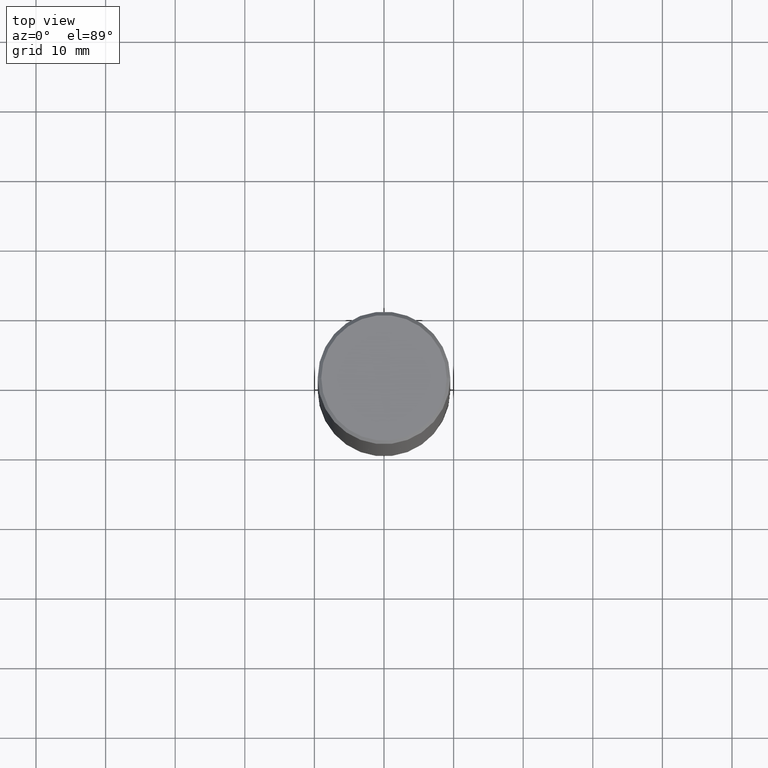
[diagram: clean part render]
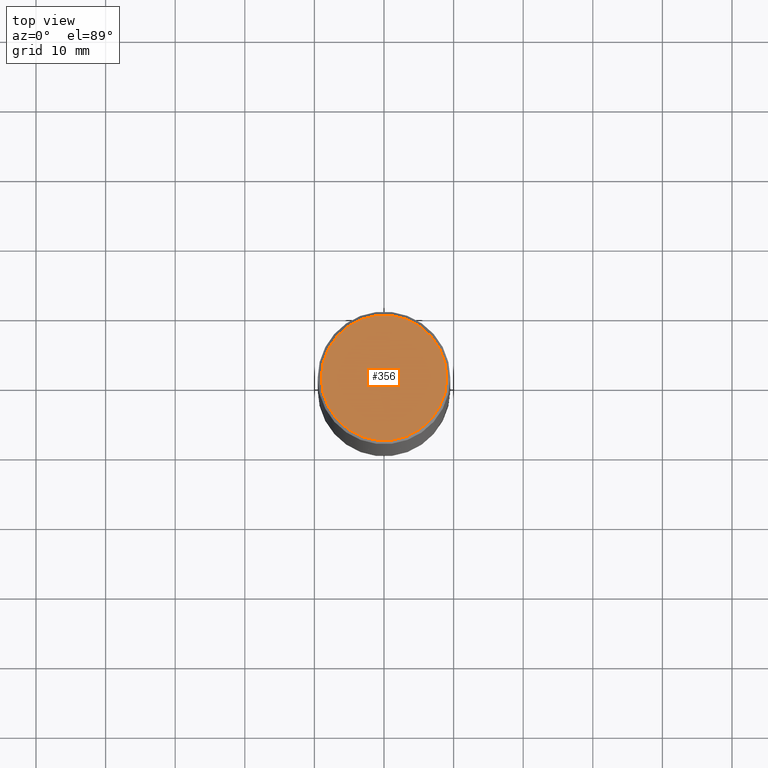
[diagram: same view with one face highlighted and labeled with its STEP entity id]
A machine part, top view. The second image highlights one B-rep face of the part: STEP entity #356.
In plain terms, the highlighted planar face has unit normal (0, -0, -1).
Its self-contained STEP definition (entity closure, byte-faithful):
#13 = DIRECTION ( 'NONE',  ( 2.438088387897960049E-29, -3.491481338843145188E-15, -1.000000000000000000 ) ) ;
#15 = CARTESIAN_POINT ( 'NONE',  ( -0.3549999999999992051, 2.513866563967050730E-15, 4.268512490082953109E-18 ) ) ;
#57 = EDGE_LOOP ( 'NONE', ( #99, #375 ) ) ;
#89 = DIRECTION ( 'NONE',  ( 1.000000000000000000, -6.982962677686266711E-15, 4.876231632511998833E-29 ) ) ;
#99 = ORIENTED_EDGE ( 'NONE', *, *, #265, .T. ) ;
#108 = CIRCLE ( 'NONE', #303, 0.3549999999999992051 ) ;
#124 = DIRECTION ( 'NONE',  ( -1.000000000000000000, 6.982962677686265922E-15, -4.876176775795935793E-29 ) ) ;
#126 = CARTESIAN_POINT ( 'NONE',  ( -1.043851414335219820E-46, 1.490343170380447200E-32, 4.268512490100411279E-18 ) ) ;
#153 = VERTEX_POINT ( 'NONE', #243 ) ;
#167 = DIRECTION ( 'NONE',  ( -2.445468806185136597E-29, 3.491481338843145583E-15, 1.000000000000000000 ) ) ;
#243 = CARTESIAN_POINT ( 'NONE',  ( 0.3549999999999992051, -2.538996582575035526E-15, 4.268512490117958041E-18 ) ) ;
#257 = CARTESIAN_POINT ( 'NONE',  ( 2.478951750578619081E-15, 0.3549999999999992051, -1.237341619044263666E-15 ) ) ;
#265 = EDGE_CURVE ( 'NONE', #300, #153, #108, .T. ) ;
#293 = DIRECTION ( 'NONE',  ( 1.000000000000000000, -6.982962677686266711E-15, 4.876231632511998833E-29 ) ) ;
#300 = VERTEX_POINT ( 'NONE', #15 ) ;
#303 = AXIS2_PLACEMENT_3D ( 'NONE', #126, #405, #89 ) ;
#309 = EDGE_CURVE ( 'NONE', #153, #300, #462, .T. ) ;
#356 = ADVANCED_FACE ( 'NONE', ( #402 ), #406, .F. ) ;
#362 = AXIS2_PLACEMENT_3D ( 'NONE', #441, #167, #293 ) ;
#375 = ORIENTED_EDGE ( 'NONE', *, *, #309, .T. ) ;
#402 = FACE_OUTER_BOUND ( 'NONE', #57, .T. ) ;
#405 = DIRECTION ( 'NONE',  ( -2.445468806185136597E-29, 3.491481338843145583E-15, 1.000000000000000000 ) ) ;
#406 = PLANE ( 'NONE',  #413 ) ;
#413 = AXIS2_PLACEMENT_3D ( 'NONE', #257, #13, #124 ) ;
#441 = CARTESIAN_POINT ( 'NONE',  ( -1.043851414335219820E-46, 1.490343170380447200E-32, 4.268512490100411279E-18 ) ) ;
#462 = CIRCLE ( 'NONE', #362, 0.3549999999999992051 ) ;